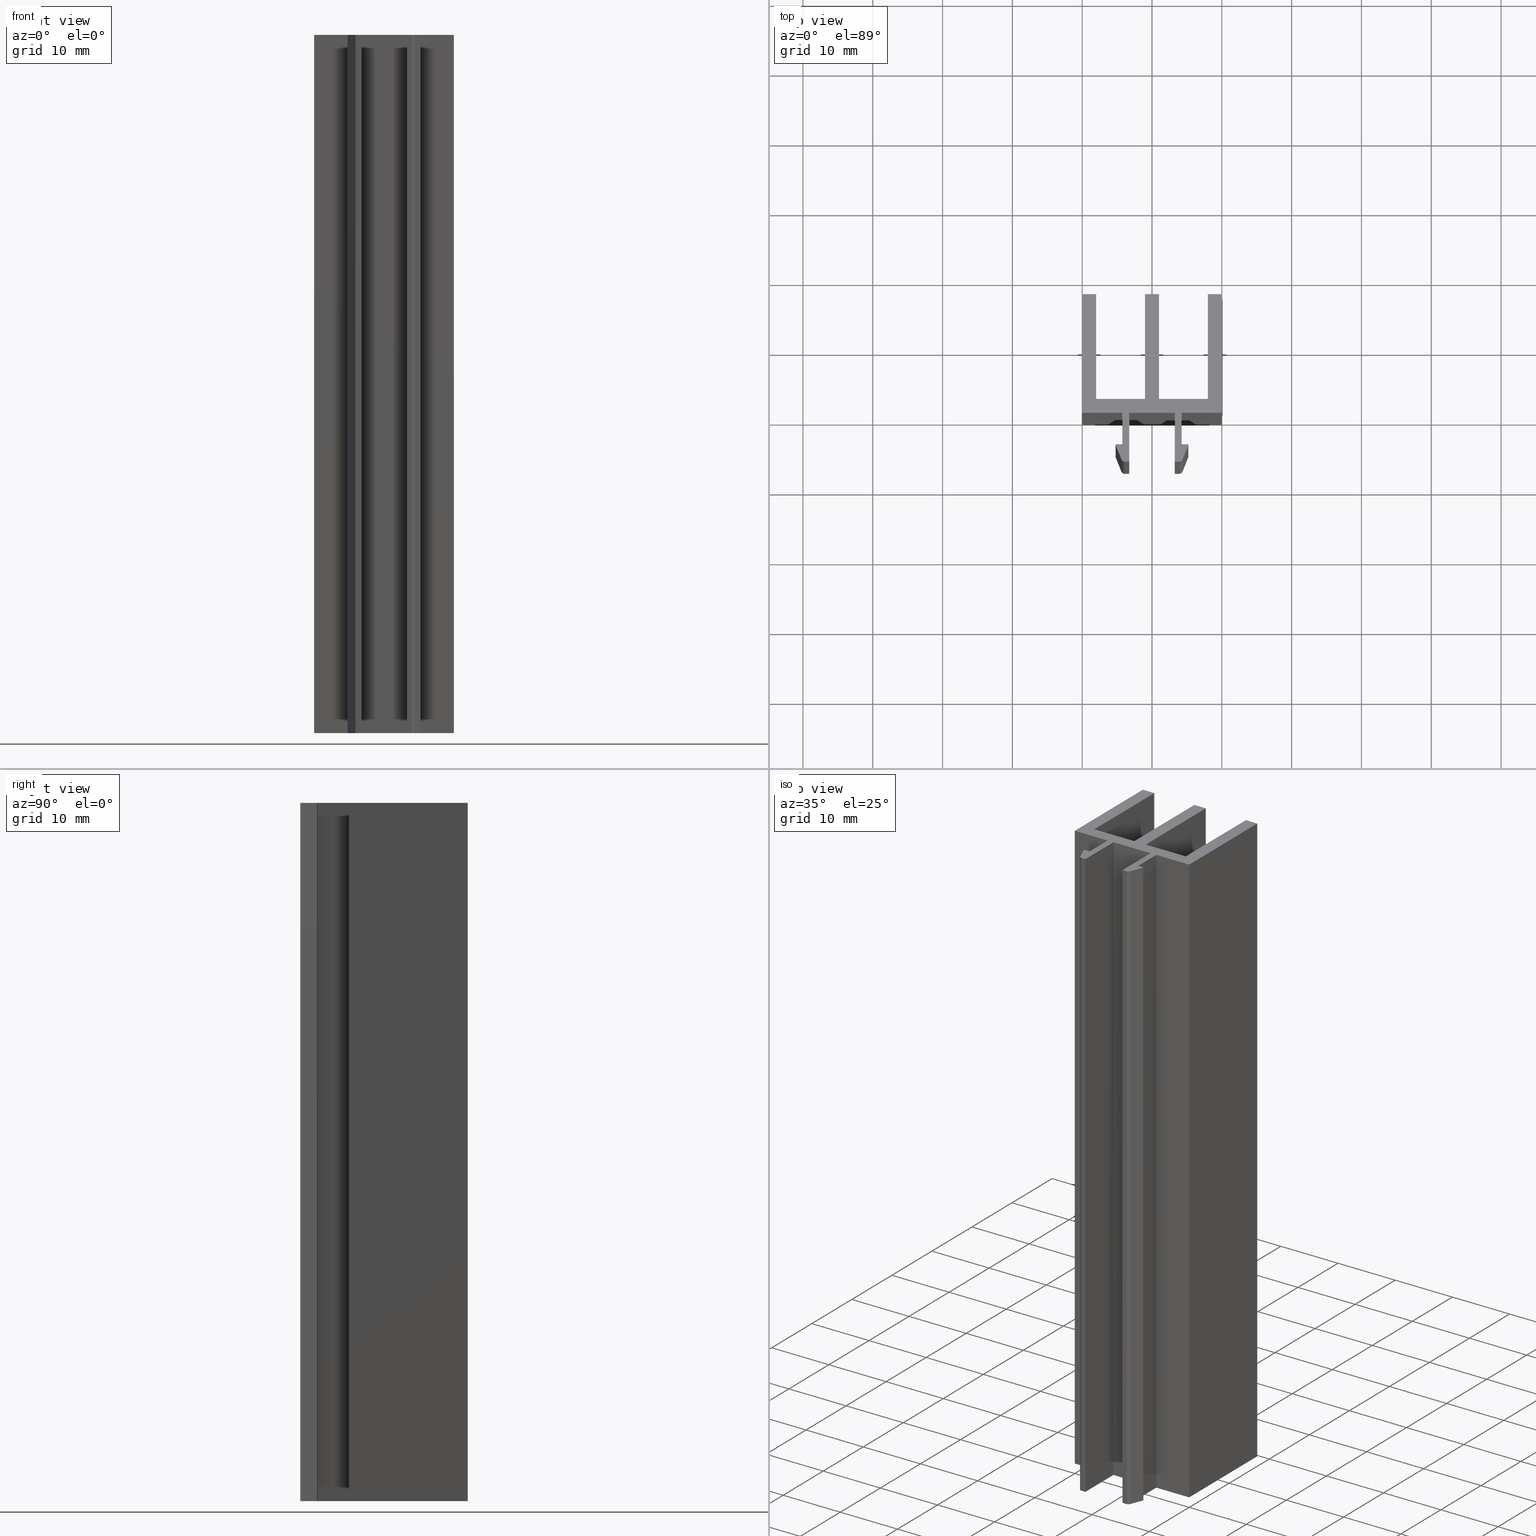
[diagram: canonical four-view strip — front | top / right | iso, engineering-drawing reading convention]
A machine part, canonical four-view strip (front | top / right | iso — engineering-drawing reading convention). The complete STEP part file that produces these views, byte-faithful:
ISO-10303-21;
HEADER;
/****************************************************************
 * Generated by software with PDE/Lib inside                    *
 * PDElib Version v4.4, created Mon 02/23/2004                  *
 * International Technegroup Inc. (www.iti-oh.com)              *
 ****************************************************************/
FILE_DESCRIPTION(('STEP AP203'),'2;1');
FILE_NAME('22.026.00.stp','2011-03-21T16:05:22',(''),(''),'2009.3.110','THINKDESIGN','');
FILE_SCHEMA(('CONFIG_CONTROL_DESIGN'));
ENDSEC;
DATA;
#2=CARTESIAN_POINT('',(-6.088516480689123,-6.499999999974079,0.0));
#3=DIRECTION('',(0.0,0.0,1.0));
#4=DIRECTION('',(1.0,0.0,0.0));
#5=AXIS2_PLACEMENT_3D('',#2,#3,#4);
#6=CYLINDRICAL_SURFACE('',#5,0.499999999998001);
#7=CARTESIAN_POINT('',(-6.088516480689123,-6.999999999972033,0.0));
#8=VERTEX_POINT('',#7);
#9=CARTESIAN_POINT('',(-5.624278135248460,-6.685695338150254,0.0));
#10=VERTEX_POINT('',#9);
#11=CARTESIAN_POINT('',(-6.088516480689123,-6.499999999974079,0.0));
#12=DIRECTION('',(0.0,0.0,1.0));
#13=DIRECTION('',(1.0,0.0,0.0));
#14=AXIS2_PLACEMENT_3D('',#11,#12,#13);
#15=CIRCLE('',#14,0.499999999998001);
#16=EDGE_CURVE('',#8,#10,#15,.T.);
#17=ORIENTED_EDGE('',*,*,#16,.T.);
#18=CARTESIAN_POINT('',(-5.624278135248460,-6.685695338150254,100.0));
#19=VERTEX_POINT('',#18);
#20=CARTESIAN_POINT('',(-5.624278135248460,-6.685695338150254,0.0));
#21=DIRECTION('',(0.0,0.0,1.0));
#22=VECTOR('',#21,100.0);
#23=LINE('',#20,#22);
#24=EDGE_CURVE('',#10,#19,#23,.T.);
#25=ORIENTED_EDGE('',*,*,#24,.T.);
#26=CARTESIAN_POINT('',(-6.088516480689123,-6.999999999972033,100.0));
#27=VERTEX_POINT('',#26);
#28=CARTESIAN_POINT('',(-6.088516480689123,-6.499999999974079,100.0));
#29=DIRECTION('',(0.0,0.0,1.0));
#30=DIRECTION('',(1.0,0.0,0.0));
#31=AXIS2_PLACEMENT_3D('',#28,#29,#30);
#32=CIRCLE('',#31,0.499999999998001);
#33=EDGE_CURVE('',#27,#19,#32,.T.);
#34=ORIENTED_EDGE('',*,*,#33,.F.);
#35=CARTESIAN_POINT('',(-6.088516480689123,-6.999999999972033,0.0));
#36=DIRECTION('',(0.0,0.0,1.0));
#37=VECTOR('',#36,100.0);
#38=LINE('',#35,#37);
#39=EDGE_CURVE('',#8,#27,#38,.T.);
#40=ORIENTED_EDGE('',*,*,#39,.F.);
#41=EDGE_LOOP('',(#17,#25,#34,#40));
#42=FACE_OUTER_BOUND('',#41,.T.);
#43=ADVANCED_FACE('',(#42),#6,.T.);
#44=CARTESIAN_POINT('',(-5.624278135248460,-6.685695338150254,0.0));
#45=DIRECTION('',(0.928476690885259,-0.371390676354104,0.0));
#46=DIRECTION('',(0.371390676354104,0.928476690885259,0.0));
#47=AXIS2_PLACEMENT_3D('',#44,#45,#46);
#48=PLANE('',#47);
#49=CARTESIAN_POINT('',(-4.804855627035067,-4.637139067616772,0.0));
#50=VERTEX_POINT('',#49);
#51=CARTESIAN_POINT('',(-5.624278135248447,-6.685695338150223,0.0));
#52=DIRECTION('',(0.371390676354104,0.928476690885259,0.0));
#53=VECTOR('',#52,2.206362626702290);
#54=LINE('',#51,#53);
#55=EDGE_CURVE('',#10,#50,#54,.T.);
#56=ORIENTED_EDGE('',*,*,#55,.T.);
#57=CARTESIAN_POINT('',(-4.804855627035067,-4.637139067616772,100.0));
#58=VERTEX_POINT('',#57);
#59=CARTESIAN_POINT('',(-4.804855627035067,-4.637139067616772,0.0));
#60=DIRECTION('',(0.0,0.0,1.0));
#61=VECTOR('',#60,100.0);
#62=LINE('',#59,#61);
#63=EDGE_CURVE('',#50,#58,#62,.T.);
#64=ORIENTED_EDGE('',*,*,#63,.T.);
#65=CARTESIAN_POINT('',(-5.624278135248447,-6.685695338150223,100.0));
#66=DIRECTION('',(0.371390676354104,0.928476690885259,0.0));
#67=VECTOR('',#66,2.206362626702290);
#68=LINE('',#65,#67);
#69=EDGE_CURVE('',#19,#58,#68,.T.);
#70=ORIENTED_EDGE('',*,*,#69,.F.);
#71=ORIENTED_EDGE('',*,*,#24,.F.);
#72=EDGE_LOOP('',(#56,#64,#70,#71));
#73=FACE_OUTER_BOUND('',#72,.T.);
#74=ADVANCED_FACE('',(#73),#48,.T.);
#75=CARTESIAN_POINT('',(-4.897703296123154,-4.599999999981492,0.0));
#76=DIRECTION('',(0.0,0.0,1.0));
#77=DIRECTION('',(0.928476690885318,-0.371390676353957,0.0));
#78=AXIS2_PLACEMENT_3D('',#75,#76,#77);
#79=CYLINDRICAL_SURFACE('',#78,0.099999999999600);
#80=CARTESIAN_POINT('',(-4.897703296123154,-4.499999999982038,0.0));
#81=VERTEX_POINT('',#80);
#82=CARTESIAN_POINT('',(-4.897703296123154,-4.599999999981492,0.0));
#83=DIRECTION('',(0.0,0.0,1.0));
#84=DIRECTION('',(1.0,0.0,0.0));
#85=AXIS2_PLACEMENT_3D('',#82,#83,#84);
#86=CIRCLE('',#85,0.099999999999600);
#87=EDGE_CURVE('',#50,#81,#86,.T.);
#88=ORIENTED_EDGE('',*,*,#87,.T.);
#89=CARTESIAN_POINT('',(-4.897703296123154,-4.499999999982038,100.0));
#90=VERTEX_POINT('',#89);
#91=CARTESIAN_POINT('',(-4.897703296123154,-4.499999999982038,0.0));
#92=DIRECTION('',(0.0,0.0,1.0));
#93=VECTOR('',#92,100.0);
#94=LINE('',#91,#93);
#95=EDGE_CURVE('',#81,#90,#94,.T.);
#96=ORIENTED_EDGE('',*,*,#95,.T.);
#97=CARTESIAN_POINT('',(-4.897703296123154,-4.599999999981492,100.0));
#98=DIRECTION('',(0.0,0.0,1.0));
#99=DIRECTION('',(1.0,0.0,0.0));
#100=AXIS2_PLACEMENT_3D('',#97,#98,#99);
#101=CIRCLE('',#100,0.099999999999600);
#102=EDGE_CURVE('',#58,#90,#101,.T.);
#103=ORIENTED_EDGE('',*,*,#102,.F.);
#104=ORIENTED_EDGE('',*,*,#63,.F.);
#105=EDGE_LOOP('',(#88,#96,#103,#104));
#106=FACE_OUTER_BOUND('',#105,.T.);
#107=ADVANCED_FACE('',(#106),#79,.T.);
#108=CARTESIAN_POINT('',(-4.897703296123154,-4.499999999982038,0.0));
#109=DIRECTION('',(0.0,1.0,0.0));
#110=DIRECTION('',(-1.0,0.0,0.0));
#111=AXIS2_PLACEMENT_3D('',#108,#109,#110);
#112=PLANE('',#111);
#113=CARTESIAN_POINT('',(-5.749999999977035,-4.499999999982038,0.0));
#114=VERTEX_POINT('',#113);
#115=CARTESIAN_POINT('',(-4.897703296123144,-4.499999999982038,0.0));
#116=DIRECTION('',(-1.0,0.0,0.0));
#117=VECTOR('',#116,0.852296703853892);
#118=LINE('',#115,#117);
#119=EDGE_CURVE('',#81,#114,#118,.T.);
#120=ORIENTED_EDGE('',*,*,#119,.T.);
#121=CARTESIAN_POINT('',(-5.749999999977035,-4.499999999982038,100.0));
#122=VERTEX_POINT('',#121);
#123=CARTESIAN_POINT('',(-5.749999999977035,-4.499999999982038,0.0));
#124=DIRECTION('',(0.0,0.0,1.0));
#125=VECTOR('',#124,100.0);
#126=LINE('',#123,#125);
#127=EDGE_CURVE('',#114,#122,#126,.T.);
#128=ORIENTED_EDGE('',*,*,#127,.T.);
#129=CARTESIAN_POINT('',(-4.897703296123144,-4.499999999982038,100.0));
#130=DIRECTION('',(-1.0,0.0,0.0));
#131=VECTOR('',#130,0.852296703853892);
#132=LINE('',#129,#131);
#133=EDGE_CURVE('',#90,#122,#132,.T.);
#134=ORIENTED_EDGE('',*,*,#133,.F.);
#135=ORIENTED_EDGE('',*,*,#95,.F.);
#136=EDGE_LOOP('',(#120,#128,#134,#135));
#137=FACE_OUTER_BOUND('',#136,.T.);
#138=ADVANCED_FACE('',(#137),#112,.T.);
#139=CARTESIAN_POINT('',(-5.749999999977035,-4.499999999982038,0.0));
#140=DIRECTION('',(1.0,0.0,0.0));
#141=DIRECTION('',(0.0,1.0,0.0));
#142=AXIS2_PLACEMENT_3D('',#139,#140,#141);
#143=PLANE('',#142);
#144=CARTESIAN_POINT('',(-5.749999999977035,0.0,0.0));
#145=VERTEX_POINT('',#144);
#146=CARTESIAN_POINT('',(-5.749999999977035,-4.499999999982008,0.0));
#147=DIRECTION('',(0.0,1.0,0.0));
#148=VECTOR('',#147,4.499999999982008);
#149=LINE('',#146,#148);
#150=EDGE_CURVE('',#114,#145,#149,.T.);
#151=ORIENTED_EDGE('',*,*,#150,.T.);
#152=CARTESIAN_POINT('',(-5.749999999977035,0.0,100.0));
#153=VERTEX_POINT('',#152);
#154=CARTESIAN_POINT('',(-5.749999999977035,0.0,0.0));
#155=DIRECTION('',(0.0,0.0,1.0));
#156=VECTOR('',#155,100.0);
#157=LINE('',#154,#156);
#158=EDGE_CURVE('',#145,#153,#157,.T.);
#159=ORIENTED_EDGE('',*,*,#158,.T.);
#160=CARTESIAN_POINT('',(-5.749999999977035,-4.499999999982008,100.0));
#161=DIRECTION('',(0.0,1.0,0.0));
#162=VECTOR('',#161,4.499999999982008);
#163=LINE('',#160,#162);
#164=EDGE_CURVE('',#122,#153,#163,.T.);
#165=ORIENTED_EDGE('',*,*,#164,.F.);
#166=ORIENTED_EDGE('',*,*,#127,.F.);
#167=EDGE_LOOP('',(#151,#159,#165,#166));
#168=FACE_OUTER_BOUND('',#167,.T.);
#169=ADVANCED_FACE('',(#168),#143,.T.);
#170=CARTESIAN_POINT('',(-5.749999999977035,0.0,0.0));
#171=DIRECTION('',(0.0,-1.0,0.0));
#172=DIRECTION('',(1.0,0.0,0.0));
#173=AXIS2_PLACEMENT_3D('',#170,#171,#172);
#174=PLANE('',#173);
#175=CARTESIAN_POINT('',(0.0,0.0,0.0));
#176=VERTEX_POINT('',#175);
#177=CARTESIAN_POINT('',(-5.749999999977026,0.0,0.0));
#178=DIRECTION('',(1.0,0.0,0.0));
#179=VECTOR('',#178,5.749999999977026);
#180=LINE('',#177,#179);
#181=EDGE_CURVE('',#145,#176,#180,.T.);
#182=ORIENTED_EDGE('',*,*,#181,.T.);
#183=CARTESIAN_POINT('',(0.0,0.0,100.0));
#184=VERTEX_POINT('',#183);
#185=CARTESIAN_POINT('',(0.0,0.0,0.0));
#186=DIRECTION('',(0.0,0.0,1.0));
#187=VECTOR('',#186,100.0);
#188=LINE('',#185,#187);
#189=EDGE_CURVE('',#176,#184,#188,.T.);
#190=ORIENTED_EDGE('',*,*,#189,.T.);
#191=CARTESIAN_POINT('',(-5.749999999977026,0.0,100.0));
#192=DIRECTION('',(1.0,0.0,0.0));
#193=VECTOR('',#192,5.749999999977026);
#194=LINE('',#191,#193);
#195=EDGE_CURVE('',#153,#184,#194,.T.);
#196=ORIENTED_EDGE('',*,*,#195,.F.);
#197=ORIENTED_EDGE('',*,*,#158,.F.);
#198=EDGE_LOOP('',(#182,#190,#196,#197));
#199=FACE_OUTER_BOUND('',#198,.T.);
#200=ADVANCED_FACE('',(#199),#174,.T.);
#201=CARTESIAN_POINT('',(0.0,0.0,0.0));
#202=DIRECTION('',(1.0,0.0,0.0));
#203=DIRECTION('',(0.0,1.0,0.0));
#204=AXIS2_PLACEMENT_3D('',#201,#202,#203);
#205=PLANE('',#204);
#206=CARTESIAN_POINT('',(0.0,16.999999999932015,0.0));
#207=VERTEX_POINT('',#206);
#208=CARTESIAN_POINT('',(0.0,3.552714E-015,0.0));
#209=DIRECTION('',(0.0,1.0,0.0));
#210=VECTOR('',#209,16.999999999932012);
#211=LINE('',#208,#210);
#212=EDGE_CURVE('',#176,#207,#211,.T.);
#213=ORIENTED_EDGE('',*,*,#212,.T.);
#214=CARTESIAN_POINT('',(0.0,16.999999999932015,100.0));
#215=VERTEX_POINT('',#214);
#216=CARTESIAN_POINT('',(0.0,16.999999999932015,0.0));
#217=DIRECTION('',(0.0,0.0,1.0));
#218=VECTOR('',#217,100.0);
#219=LINE('',#216,#218);
#220=EDGE_CURVE('',#207,#215,#219,.T.);
#221=ORIENTED_EDGE('',*,*,#220,.T.);
#222=CARTESIAN_POINT('',(0.0,3.552714E-015,100.0));
#223=DIRECTION('',(0.0,1.0,0.0));
#224=VECTOR('',#223,16.999999999932012);
#225=LINE('',#222,#224);
#226=EDGE_CURVE('',#184,#215,#225,.T.);
#227=ORIENTED_EDGE('',*,*,#226,.F.);
#228=ORIENTED_EDGE('',*,*,#189,.F.);
#229=EDGE_LOOP('',(#213,#221,#227,#228));
#230=FACE_OUTER_BOUND('',#229,.T.);
#231=ADVANCED_FACE('',(#230),#205,.T.);
#232=CARTESIAN_POINT('',(0.0,16.999999999932015,0.0));
#233=DIRECTION('',(0.0,1.0,0.0));
#234=DIRECTION('',(-1.0,0.0,0.0));
#235=AXIS2_PLACEMENT_3D('',#232,#233,#234);
#236=PLANE('',#235);
#237=CARTESIAN_POINT('',(-1.999999999992042,16.999999999932015,0.0));
#238=VERTEX_POINT('',#237);
#239=CARTESIAN_POINT('',(-3.441691E-014,16.999999999932015,0.0));
#240=DIRECTION('',(-1.0,0.0,0.0));
#241=VECTOR('',#240,1.999999999992008);
#242=LINE('',#239,#241);
#243=EDGE_CURVE('',#207,#238,#242,.T.);
#244=ORIENTED_EDGE('',*,*,#243,.T.);
#245=CARTESIAN_POINT('',(-1.999999999992042,16.999999999932015,100.0));
#246=VERTEX_POINT('',#245);
#247=CARTESIAN_POINT('',(-1.999999999992042,16.999999999932015,0.0));
#248=DIRECTION('',(0.0,0.0,1.0));
#249=VECTOR('',#248,100.0);
#250=LINE('',#247,#249);
#251=EDGE_CURVE('',#238,#246,#250,.T.);
#252=ORIENTED_EDGE('',*,*,#251,.T.);
#253=CARTESIAN_POINT('',(-3.441691E-014,16.999999999932015,100.0));
#254=DIRECTION('',(-1.0,0.0,0.0));
#255=VECTOR('',#254,1.999999999992008);
#256=LINE('',#253,#255);
#257=EDGE_CURVE('',#215,#246,#256,.T.);
#258=ORIENTED_EDGE('',*,*,#257,.F.);
#259=ORIENTED_EDGE('',*,*,#220,.F.);
#260=EDGE_LOOP('',(#244,#252,#258,#259));
#261=FACE_OUTER_BOUND('',#260,.T.);
#262=ADVANCED_FACE('',(#261),#236,.T.);
#263=CARTESIAN_POINT('',(-1.999999999992042,16.999999999932015,0.0));
#264=DIRECTION('',(-1.0,0.0,0.0));
#265=DIRECTION('',(0.0,-1.0,0.0));
#266=AXIS2_PLACEMENT_3D('',#263,#264,#265);
#267=PLANE('',#266);
#268=CARTESIAN_POINT('',(-1.999999999992042,1.999999999992042,0.0));
#269=VERTEX_POINT('',#268);
#270=CARTESIAN_POINT('',(-1.999999999992042,16.999999999932044,0.0));
#271=DIRECTION('',(0.0,-1.0,0.0));
#272=VECTOR('',#271,14.999999999940002);
#273=LINE('',#270,#272);
#274=EDGE_CURVE('',#238,#269,#273,.T.);
#275=ORIENTED_EDGE('',*,*,#274,.T.);
#276=CARTESIAN_POINT('',(-1.999999999992042,1.999999999992042,100.0));
#277=VERTEX_POINT('',#276);
#278=CARTESIAN_POINT('',(-1.999999999992042,1.999999999992042,0.0));
#279=DIRECTION('',(0.0,0.0,1.0));
#280=VECTOR('',#279,100.0);
#281=LINE('',#278,#280);
#282=EDGE_CURVE('',#269,#277,#281,.T.);
#283=ORIENTED_EDGE('',*,*,#282,.T.);
#284=CARTESIAN_POINT('',(-1.999999999992042,16.999999999932044,100.0));
#285=DIRECTION('',(0.0,-1.0,0.0));
#286=VECTOR('',#285,14.999999999940002);
#287=LINE('',#284,#286);
#288=EDGE_CURVE('',#246,#277,#287,.T.);
#289=ORIENTED_EDGE('',*,*,#288,.F.);
#290=ORIENTED_EDGE('',*,*,#251,.F.);
#291=EDGE_LOOP('',(#275,#283,#289,#290));
#292=FACE_OUTER_BOUND('',#291,.T.);
#293=ADVANCED_FACE('',(#292),#267,.T.);
#294=CARTESIAN_POINT('',(-1.999999999992042,1.999999999992042,0.0));
#295=DIRECTION('',(0.0,1.0,0.0));
#296=DIRECTION('',(-1.0,0.0,0.0));
#297=AXIS2_PLACEMENT_3D('',#294,#295,#296);
#298=PLANE('',#297);
#299=CARTESIAN_POINT('',(-8.999999999964075,1.999999999992042,0.0));
#300=VERTEX_POINT('',#299);
#301=CARTESIAN_POINT('',(-1.999999999992085,1.999999999992042,0.0));
#302=DIRECTION('',(-1.0,0.0,0.0));
#303=VECTOR('',#302,6.999999999971990);
#304=LINE('',#301,#303);
#305=EDGE_CURVE('',#269,#300,#304,.T.);
#306=ORIENTED_EDGE('',*,*,#305,.T.);
#307=CARTESIAN_POINT('',(-8.999999999964075,1.999999999992042,100.0));
#308=VERTEX_POINT('',#307);
#309=CARTESIAN_POINT('',(-8.999999999964075,1.999999999992042,0.0));
#310=DIRECTION('',(0.0,0.0,1.0));
#311=VECTOR('',#310,100.0);
#312=LINE('',#309,#311);
#313=EDGE_CURVE('',#300,#308,#312,.T.);
#314=ORIENTED_EDGE('',*,*,#313,.T.);
#315=CARTESIAN_POINT('',(-1.999999999992085,1.999999999992042,100.0));
#316=DIRECTION('',(-1.0,0.0,0.0));
#317=VECTOR('',#316,6.999999999971990);
#318=LINE('',#315,#317);
#319=EDGE_CURVE('',#277,#308,#318,.T.);
#320=ORIENTED_EDGE('',*,*,#319,.F.);
#321=ORIENTED_EDGE('',*,*,#282,.F.);
#322=EDGE_LOOP('',(#306,#314,#320,#321));
#323=FACE_OUTER_BOUND('',#322,.T.);
#324=ADVANCED_FACE('',(#323),#298,.T.);
#325=CARTESIAN_POINT('',(-8.999999999964075,1.999999999992042,0.0));
#326=DIRECTION('',(1.0,0.0,0.0));
#327=DIRECTION('',(0.0,1.0,0.0));
#328=AXIS2_PLACEMENT_3D('',#325,#326,#327);
#329=PLANE('',#328);
#330=CARTESIAN_POINT('',(-8.999999999964075,16.999999999932015,0.0));
#331=VERTEX_POINT('',#330);
#332=CARTESIAN_POINT('',(-8.999999999964075,1.999999999992012,0.0));
#333=DIRECTION('',(0.0,1.0,0.0));
#334=VECTOR('',#333,14.999999999940004);
#335=LINE('',#332,#334);
#336=EDGE_CURVE('',#300,#331,#335,.T.);
#337=ORIENTED_EDGE('',*,*,#336,.T.);
#338=CARTESIAN_POINT('',(-8.999999999964075,16.999999999932015,100.0));
#339=VERTEX_POINT('',#338);
#340=CARTESIAN_POINT('',(-8.999999999964075,16.999999999932015,0.0));
#341=DIRECTION('',(0.0,0.0,1.0));
#342=VECTOR('',#341,100.0);
#343=LINE('',#340,#342);
#344=EDGE_CURVE('',#331,#339,#343,.T.);
#345=ORIENTED_EDGE('',*,*,#344,.T.);
#346=CARTESIAN_POINT('',(-8.999999999964075,1.999999999992012,100.0));
#347=DIRECTION('',(0.0,1.0,0.0));
#348=VECTOR('',#347,14.999999999940004);
#349=LINE('',#346,#348);
#350=EDGE_CURVE('',#308,#339,#349,.T.);
#351=ORIENTED_EDGE('',*,*,#350,.F.);
#352=ORIENTED_EDGE('',*,*,#313,.F.);
#353=EDGE_LOOP('',(#337,#345,#351,#352));
#354=FACE_OUTER_BOUND('',#353,.T.);
#355=ADVANCED_FACE('',(#354),#329,.T.);
#356=CARTESIAN_POINT('',(-8.999999999964075,16.999999999932015,0.0));
#357=DIRECTION('',(0.0,1.0,0.0));
#358=DIRECTION('',(-1.0,0.0,0.0));
#359=AXIS2_PLACEMENT_3D('',#356,#357,#358);
#360=PLANE('',#359);
#361=CARTESIAN_POINT('',(-10.999999999956117,16.999999999932015,0.0));
#362=VERTEX_POINT('',#361);
#363=CARTESIAN_POINT('',(-8.999999999964109,16.999999999932015,0.0));
#364=DIRECTION('',(-1.0,0.0,0.0));
#365=VECTOR('',#364,1.999999999992008);
#366=LINE('',#363,#365);
#367=EDGE_CURVE('',#331,#362,#366,.T.);
#368=ORIENTED_EDGE('',*,*,#367,.T.);
#369=CARTESIAN_POINT('',(-10.999999999956117,16.999999999932015,100.0));
#370=VERTEX_POINT('',#369);
#371=CARTESIAN_POINT('',(-10.999999999956117,16.999999999932015,0.0));
#372=DIRECTION('',(0.0,0.0,1.0));
#373=VECTOR('',#372,100.0);
#374=LINE('',#371,#373);
#375=EDGE_CURVE('',#362,#370,#374,.T.);
#376=ORIENTED_EDGE('',*,*,#375,.T.);
#377=CARTESIAN_POINT('',(-8.999999999964109,16.999999999932015,100.0));
#378=DIRECTION('',(-1.0,0.0,0.0));
#379=VECTOR('',#378,1.999999999992008);
#380=LINE('',#377,#379);
#381=EDGE_CURVE('',#339,#370,#380,.T.);
#382=ORIENTED_EDGE('',*,*,#381,.F.);
#383=ORIENTED_EDGE('',*,*,#344,.F.);
#384=EDGE_LOOP('',(#368,#376,#382,#383));
#385=FACE_OUTER_BOUND('',#384,.T.);
#386=ADVANCED_FACE('',(#385),#360,.T.);
#387=CARTESIAN_POINT('',(-10.999999999956117,16.999999999932015,0.0));
#388=DIRECTION('',(-1.0,0.0,0.0));
#389=DIRECTION('',(0.0,-1.0,0.0));
#390=AXIS2_PLACEMENT_3D('',#387,#388,#389);
#391=PLANE('',#390);
#392=CARTESIAN_POINT('',(-10.999999999956117,1.999999999992042,0.0));
#393=VERTEX_POINT('',#392);
#394=CARTESIAN_POINT('',(-10.999999999956117,16.999999999932044,0.0));
#395=DIRECTION('',(0.0,-1.0,0.0));
#396=VECTOR('',#395,14.999999999940002);
#397=LINE('',#394,#396);
#398=EDGE_CURVE('',#362,#393,#397,.T.);
#399=ORIENTED_EDGE('',*,*,#398,.T.);
#400=CARTESIAN_POINT('',(-10.999999999956117,1.999999999992042,100.0));
#401=VERTEX_POINT('',#400);
#402=CARTESIAN_POINT('',(-10.999999999956117,1.999999999992042,0.0));
#403=DIRECTION('',(0.0,0.0,1.0));
#404=VECTOR('',#403,100.0);
#405=LINE('',#402,#404);
#406=EDGE_CURVE('',#393,#401,#405,.T.);
#407=ORIENTED_EDGE('',*,*,#406,.T.);
#408=CARTESIAN_POINT('',(-10.999999999956117,16.999999999932044,100.0));
#409=DIRECTION('',(0.0,-1.0,0.0));
#410=VECTOR('',#409,14.999999999940002);
#411=LINE('',#408,#410);
#412=EDGE_CURVE('',#370,#401,#411,.T.);
#413=ORIENTED_EDGE('',*,*,#412,.F.);
#414=ORIENTED_EDGE('',*,*,#375,.F.);
#415=EDGE_LOOP('',(#399,#407,#413,#414));
#416=FACE_OUTER_BOUND('',#415,.T.);
#417=ADVANCED_FACE('',(#416),#391,.T.);
#418=CARTESIAN_POINT('',(-10.999999999956117,1.999999999992042,0.0));
#419=DIRECTION('',(0.0,1.0,0.0));
#420=DIRECTION('',(-1.0,0.0,0.0));
#421=AXIS2_PLACEMENT_3D('',#418,#419,#420);
#422=PLANE('',#421);
#423=CARTESIAN_POINT('',(-17.999999999928150,1.999999999992042,0.0));
#424=VERTEX_POINT('',#423);
#425=CARTESIAN_POINT('',(-10.999999999956160,1.999999999992042,0.0));
#426=DIRECTION('',(-1.0,0.0,0.0));
#427=VECTOR('',#426,6.999999999971990);
#428=LINE('',#425,#427);
#429=EDGE_CURVE('',#393,#424,#428,.T.);
#430=ORIENTED_EDGE('',*,*,#429,.T.);
#431=CARTESIAN_POINT('',(-17.999999999928150,1.999999999992042,100.0));
#432=VERTEX_POINT('',#431);
#433=CARTESIAN_POINT('',(-17.999999999928150,1.999999999992042,0.0));
#434=DIRECTION('',(0.0,0.0,1.0));
#435=VECTOR('',#434,100.0);
#436=LINE('',#433,#435);
#437=EDGE_CURVE('',#424,#432,#436,.T.);
#438=ORIENTED_EDGE('',*,*,#437,.T.);
#439=CARTESIAN_POINT('',(-10.999999999956160,1.999999999992042,100.0));
#440=DIRECTION('',(-1.0,0.0,0.0));
#441=VECTOR('',#440,6.999999999971990);
#442=LINE('',#439,#441);
#443=EDGE_CURVE('',#401,#432,#442,.T.);
#444=ORIENTED_EDGE('',*,*,#443,.F.);
#445=ORIENTED_EDGE('',*,*,#406,.F.);
#446=EDGE_LOOP('',(#430,#438,#444,#445));
#447=FACE_OUTER_BOUND('',#446,.T.);
#448=ADVANCED_FACE('',(#447),#422,.T.);
#449=CARTESIAN_POINT('',(-17.999999999928150,1.999999999992042,0.0));
#450=DIRECTION('',(1.0,0.0,0.0));
#451=DIRECTION('',(0.0,1.0,0.0));
#452=AXIS2_PLACEMENT_3D('',#449,#450,#451);
#453=PLANE('',#452);
#454=CARTESIAN_POINT('',(-17.999999999928150,16.999999999932015,0.0));
#455=VERTEX_POINT('',#454);
#456=CARTESIAN_POINT('',(-17.999999999928150,1.999999999992012,0.0));
#457=DIRECTION('',(0.0,1.0,0.0));
#458=VECTOR('',#457,14.999999999940004);
#459=LINE('',#456,#458);
#460=EDGE_CURVE('',#424,#455,#459,.T.);
#461=ORIENTED_EDGE('',*,*,#460,.T.);
#462=CARTESIAN_POINT('',(-17.999999999928150,16.999999999932015,100.0));
#463=VERTEX_POINT('',#462);
#464=CARTESIAN_POINT('',(-17.999999999928150,16.999999999932015,0.0));
#465=DIRECTION('',(0.0,0.0,1.0));
#466=VECTOR('',#465,100.0);
#467=LINE('',#464,#466);
#468=EDGE_CURVE('',#455,#463,#467,.T.);
#469=ORIENTED_EDGE('',*,*,#468,.T.);
#470=CARTESIAN_POINT('',(-17.999999999928150,1.999999999992012,100.0));
#471=DIRECTION('',(0.0,1.0,0.0));
#472=VECTOR('',#471,14.999999999940004);
#473=LINE('',#470,#472);
#474=EDGE_CURVE('',#432,#463,#473,.T.);
#475=ORIENTED_EDGE('',*,*,#474,.F.);
#476=ORIENTED_EDGE('',*,*,#437,.F.);
#477=EDGE_LOOP('',(#461,#469,#475,#476));
#478=FACE_OUTER_BOUND('',#477,.T.);
#479=ADVANCED_FACE('',(#478),#453,.T.);
#480=CARTESIAN_POINT('',(-17.999999999928150,16.999999999932015,0.0));
#481=DIRECTION('',(0.0,1.0,0.0));
#482=DIRECTION('',(-1.0,0.0,0.0));
#483=AXIS2_PLACEMENT_3D('',#480,#481,#482);
#484=PLANE('',#483);
#485=CARTESIAN_POINT('',(-19.999999999920192,16.999999999932015,0.0));
#486=VERTEX_POINT('',#485);
#487=CARTESIAN_POINT('',(-17.999999999928185,16.999999999932015,0.0));
#488=DIRECTION('',(-1.0,0.0,0.0));
#489=VECTOR('',#488,1.999999999992006);
#490=LINE('',#487,#489);
#491=EDGE_CURVE('',#455,#486,#490,.T.);
#492=ORIENTED_EDGE('',*,*,#491,.T.);
#493=CARTESIAN_POINT('',(-19.999999999920192,16.999999999932015,100.0));
#494=VERTEX_POINT('',#493);
#495=CARTESIAN_POINT('',(-19.999999999920192,16.999999999932015,0.0));
#496=DIRECTION('',(0.0,0.0,1.0));
#497=VECTOR('',#496,100.0);
#498=LINE('',#495,#497);
#499=EDGE_CURVE('',#486,#494,#498,.T.);
#500=ORIENTED_EDGE('',*,*,#499,.T.);
#501=CARTESIAN_POINT('',(-17.999999999928185,16.999999999932015,100.0));
#502=DIRECTION('',(-1.0,0.0,0.0));
#503=VECTOR('',#502,1.999999999992006);
#504=LINE('',#501,#503);
#505=EDGE_CURVE('',#463,#494,#504,.T.);
#506=ORIENTED_EDGE('',*,*,#505,.F.);
#507=ORIENTED_EDGE('',*,*,#468,.F.);
#508=EDGE_LOOP('',(#492,#500,#506,#507));
#509=FACE_OUTER_BOUND('',#508,.T.);
#510=ADVANCED_FACE('',(#509),#484,.T.);
#511=CARTESIAN_POINT('',(-19.999999999920192,16.999999999932015,0.0));
#512=DIRECTION('',(-1.0,0.0,0.0));
#513=DIRECTION('',(0.0,-1.0,0.0));
#514=AXIS2_PLACEMENT_3D('',#511,#512,#513);
#515=PLANE('',#514);
#516=CARTESIAN_POINT('',(-19.999999999920192,0.0,0.0));
#517=VERTEX_POINT('',#516);
#518=CARTESIAN_POINT('',(-19.999999999920192,16.999999999931994,0.0));
#519=DIRECTION('',(0.0,-1.0,0.0));
#520=VECTOR('',#519,16.999999999931994);
#521=LINE('',#518,#520);
#522=EDGE_CURVE('',#486,#517,#521,.T.);
#523=ORIENTED_EDGE('',*,*,#522,.T.);
#524=CARTESIAN_POINT('',(-19.999999999920192,0.0,100.0));
#525=VERTEX_POINT('',#524);
#526=CARTESIAN_POINT('',(-19.999999999920192,0.0,0.0));
#527=DIRECTION('',(0.0,0.0,1.0));
#528=VECTOR('',#527,100.0);
#529=LINE('',#526,#528);
#530=EDGE_CURVE('',#517,#525,#529,.T.);
#531=ORIENTED_EDGE('',*,*,#530,.T.);
#532=CARTESIAN_POINT('',(-19.999999999920192,16.999999999931994,100.0));
#533=DIRECTION('',(0.0,-1.0,0.0));
#534=VECTOR('',#533,16.999999999931994);
#535=LINE('',#532,#534);
#536=EDGE_CURVE('',#494,#525,#535,.T.);
#537=ORIENTED_EDGE('',*,*,#536,.F.);
#538=ORIENTED_EDGE('',*,*,#499,.F.);
#539=EDGE_LOOP('',(#523,#531,#537,#538));
#540=FACE_OUTER_BOUND('',#539,.T.);
#541=ADVANCED_FACE('',(#540),#515,.T.);
#542=CARTESIAN_POINT('',(-19.999999999920192,0.0,0.0));
#543=DIRECTION('',(0.0,-1.0,0.0));
#544=DIRECTION('',(1.0,0.0,0.0));
#545=AXIS2_PLACEMENT_3D('',#542,#543,#544);
#546=PLANE('',#545);
#547=CARTESIAN_POINT('',(-14.249999999943157,0.0,0.0));
#548=VERTEX_POINT('',#547);
#549=CARTESIAN_POINT('',(-19.999999999920163,0.0,0.0));
#550=DIRECTION('',(1.0,0.0,0.0));
#551=VECTOR('',#550,5.749999999977007);
#552=LINE('',#549,#551);
#553=EDGE_CURVE('',#517,#548,#552,.T.);
#554=ORIENTED_EDGE('',*,*,#553,.T.);
#555=CARTESIAN_POINT('',(-14.249999999943157,0.0,100.0));
#556=VERTEX_POINT('',#555);
#557=CARTESIAN_POINT('',(-14.249999999943157,0.0,0.0));
#558=DIRECTION('',(0.0,0.0,1.0));
#559=VECTOR('',#558,100.0);
#560=LINE('',#557,#559);
#561=EDGE_CURVE('',#548,#556,#560,.T.);
#562=ORIENTED_EDGE('',*,*,#561,.T.);
#563=CARTESIAN_POINT('',(-19.999999999920163,0.0,100.0));
#564=DIRECTION('',(1.0,0.0,0.0));
#565=VECTOR('',#564,5.749999999977007);
#566=LINE('',#563,#565);
#567=EDGE_CURVE('',#525,#556,#566,.T.);
#568=ORIENTED_EDGE('',*,*,#567,.F.);
#569=ORIENTED_EDGE('',*,*,#530,.F.);
#570=EDGE_LOOP('',(#554,#562,#568,#569));
#571=FACE_OUTER_BOUND('',#570,.T.);
#572=ADVANCED_FACE('',(#571),#546,.T.);
#573=CARTESIAN_POINT('',(-14.249999999943157,0.0,0.0));
#574=DIRECTION('',(-1.0,0.0,0.0));
#575=DIRECTION('',(0.0,-1.0,0.0));
#576=AXIS2_PLACEMENT_3D('',#573,#574,#575);
#577=PLANE('',#576);
#578=CARTESIAN_POINT('',(-14.249999999943157,-4.499999999982038,0.0));
#579=VERTEX_POINT('',#578);
#580=CARTESIAN_POINT('',(-14.249999999943157,-2.930989E-014,0.0));
#581=DIRECTION('',(0.0,-1.0,0.0));
#582=VECTOR('',#581,4.499999999982008);
#583=LINE('',#580,#582);
#584=EDGE_CURVE('',#548,#579,#583,.T.);
#585=ORIENTED_EDGE('',*,*,#584,.T.);
#586=CARTESIAN_POINT('',(-14.249999999943157,-4.499999999982038,100.0));
#587=VERTEX_POINT('',#586);
#588=CARTESIAN_POINT('',(-14.249999999943157,-4.499999999982038,0.0));
#589=DIRECTION('',(0.0,0.0,1.0));
#590=VECTOR('',#589,100.0);
#591=LINE('',#588,#590);
#592=EDGE_CURVE('',#579,#587,#591,.T.);
#593=ORIENTED_EDGE('',*,*,#592,.T.);
#594=CARTESIAN_POINT('',(-14.249999999943157,-2.930989E-014,100.0));
#595=DIRECTION('',(0.0,-1.0,0.0));
#596=VECTOR('',#595,4.499999999982008);
#597=LINE('',#594,#596);
#598=EDGE_CURVE('',#556,#587,#597,.T.);
#599=ORIENTED_EDGE('',*,*,#598,.F.);
#600=ORIENTED_EDGE('',*,*,#561,.F.);
#601=EDGE_LOOP('',(#585,#593,#599,#600));
#602=FACE_OUTER_BOUND('',#601,.T.);
#603=ADVANCED_FACE('',(#602),#577,.T.);
#604=CARTESIAN_POINT('',(-14.249999999943157,-4.499999999982038,0.0));
#605=DIRECTION('',(0.0,1.0,0.0));
#606=DIRECTION('',(-1.0,0.0,0.0));
#607=AXIS2_PLACEMENT_3D('',#604,#605,#606);
#608=PLANE('',#607);
#609=CARTESIAN_POINT('',(-15.102296703797037,-4.499999999981810,0.0));
#610=VERTEX_POINT('',#609);
#611=CARTESIAN_POINT('',(-14.249999999943128,-4.499999999982038,0.0));
#612=DIRECTION('',(-1.0,0.0,0.0));
#613=VECTOR('',#612,0.852296703853909);
#614=LINE('',#611,#613);
#615=EDGE_CURVE('',#579,#610,#614,.T.);
#616=ORIENTED_EDGE('',*,*,#615,.T.);
#617=CARTESIAN_POINT('',(-15.102296703797037,-4.499999999981810,100.0));
#618=VERTEX_POINT('',#617);
#619=CARTESIAN_POINT('',(-15.102296703797037,-4.499999999981810,0.0));
#620=DIRECTION('',(0.0,0.0,1.0));
#621=VECTOR('',#620,100.0);
#622=LINE('',#619,#621);
#623=EDGE_CURVE('',#610,#618,#622,.T.);
#624=ORIENTED_EDGE('',*,*,#623,.T.);
#625=CARTESIAN_POINT('',(-14.249999999943128,-4.499999999982038,100.0));
#626=DIRECTION('',(-1.0,0.0,0.0));
#627=VECTOR('',#626,0.852296703853909);
#628=LINE('',#625,#627);
#629=EDGE_CURVE('',#587,#618,#628,.T.);
#630=ORIENTED_EDGE('',*,*,#629,.F.);
#631=ORIENTED_EDGE('',*,*,#592,.F.);
#632=EDGE_LOOP('',(#616,#624,#630,#631));
#633=FACE_OUTER_BOUND('',#632,.T.);
#634=ADVANCED_FACE('',(#633),#608,.T.);
#635=CARTESIAN_POINT('',(-15.102296703797037,-4.599999999981492,0.0));
#636=DIRECTION('',(0.0,0.0,1.0));
#637=DIRECTION('',(1.0,0.0,0.0));
#638=AXIS2_PLACEMENT_3D('',#635,#636,#637);
#639=CYLINDRICAL_SURFACE('',#638,0.099999999999601);
#640=CARTESIAN_POINT('',(-15.195144372885125,-4.637139067616772,0.0));
#641=VERTEX_POINT('',#640);
#642=CARTESIAN_POINT('',(-15.102296703797037,-4.599999999981492,0.0));
#643=DIRECTION('',(0.0,0.0,1.0));
#644=DIRECTION('',(1.0,0.0,0.0));
#645=AXIS2_PLACEMENT_3D('',#642,#643,#644);
#646=CIRCLE('',#645,0.099999999999601);
#647=EDGE_CURVE('',#610,#641,#646,.T.);
#648=ORIENTED_EDGE('',*,*,#647,.T.);
#649=CARTESIAN_POINT('',(-15.195144372885125,-4.637139067616772,100.0));
#650=VERTEX_POINT('',#649);
#651=CARTESIAN_POINT('',(-15.195144372885125,-4.637139067616772,0.0));
#652=DIRECTION('',(0.0,0.0,1.0));
#653=VECTOR('',#652,100.0);
#654=LINE('',#651,#653);
#655=EDGE_CURVE('',#641,#650,#654,.T.);
#656=ORIENTED_EDGE('',*,*,#655,.T.);
#657=CARTESIAN_POINT('',(-15.102296703797037,-4.599999999981492,100.0));
#658=DIRECTION('',(0.0,0.0,1.0));
#659=DIRECTION('',(1.0,0.0,0.0));
#660=AXIS2_PLACEMENT_3D('',#657,#658,#659);
#661=CIRCLE('',#660,0.099999999999601);
#662=EDGE_CURVE('',#618,#650,#661,.T.);
#663=ORIENTED_EDGE('',*,*,#662,.F.);
#664=ORIENTED_EDGE('',*,*,#623,.F.);
#665=EDGE_LOOP('',(#648,#656,#663,#664));
#666=FACE_OUTER_BOUND('',#665,.T.);
#667=ADVANCED_FACE('',(#666),#639,.T.);
#668=CARTESIAN_POINT('',(-15.195144372885125,-4.637139067616772,0.0));
#669=DIRECTION('',(-0.928476690885259,-0.371390676354104,0.0));
#670=DIRECTION('',(0.371390676354104,-0.928476690885259,0.0));
#671=AXIS2_PLACEMENT_3D('',#668,#669,#670);
#672=PLANE('',#671);
#673=CARTESIAN_POINT('',(-14.375721864671959,-6.685695338150254,0.0));
#674=VERTEX_POINT('',#673);
#675=CARTESIAN_POINT('',(-15.195144372885112,-4.637139067616802,0.0));
#676=DIRECTION('',(0.371390676354104,-0.928476690885259,0.0));
#677=VECTOR('',#676,2.206362626702290);
#678=LINE('',#675,#677);
#679=EDGE_CURVE('',#641,#674,#678,.T.);
#680=ORIENTED_EDGE('',*,*,#679,.T.);
#681=CARTESIAN_POINT('',(-14.375721864671959,-6.685695338150254,100.0));
#682=VERTEX_POINT('',#681);
#683=CARTESIAN_POINT('',(-14.375721864671959,-6.685695338150254,0.0));
#684=DIRECTION('',(0.0,0.0,1.0));
#685=VECTOR('',#684,100.0);
#686=LINE('',#683,#685);
#687=EDGE_CURVE('',#674,#682,#686,.T.);
#688=ORIENTED_EDGE('',*,*,#687,.T.);
#689=CARTESIAN_POINT('',(-15.195144372885112,-4.637139067616802,100.0));
#690=DIRECTION('',(0.371390676354104,-0.928476690885259,0.0));
#691=VECTOR('',#690,2.206362626702290);
#692=LINE('',#689,#691);
#693=EDGE_CURVE('',#650,#682,#692,.T.);
#694=ORIENTED_EDGE('',*,*,#693,.F.);
#695=ORIENTED_EDGE('',*,*,#655,.F.);
#696=EDGE_LOOP('',(#680,#688,#694,#695));
#697=FACE_OUTER_BOUND('',#696,.T.);
#698=ADVANCED_FACE('',(#697),#672,.T.);
#699=CARTESIAN_POINT('',(-13.911483519231069,-6.499999999974079,0.0));
#700=DIRECTION('',(0.0,0.0,1.0));
#701=DIRECTION('',(1.0,0.0,0.0));
#702=AXIS2_PLACEMENT_3D('',#699,#700,#701);
#703=CYLINDRICAL_SURFACE('',#702,0.499999999998000);
#704=CARTESIAN_POINT('',(-13.911483519230842,-6.999999999972033,0.0));
#705=VERTEX_POINT('',#704);
#706=CARTESIAN_POINT('',(-13.911483519231069,-6.499999999974079,0.0));
#707=DIRECTION('',(0.0,0.0,1.0));
#708=DIRECTION('',(1.0,0.0,0.0));
#709=AXIS2_PLACEMENT_3D('',#706,#707,#708);
#710=CIRCLE('',#709,0.499999999998000);
#711=EDGE_CURVE('',#674,#705,#710,.T.);
#712=ORIENTED_EDGE('',*,*,#711,.T.);
#713=CARTESIAN_POINT('',(-13.911483519230842,-6.999999999972033,100.0));
#714=VERTEX_POINT('',#713);
#715=CARTESIAN_POINT('',(-13.911483519230842,-6.999999999972033,0.0));
#716=DIRECTION('',(0.0,0.0,1.0));
#717=VECTOR('',#716,100.0);
#718=LINE('',#715,#717);
#719=EDGE_CURVE('',#705,#714,#718,.T.);
#720=ORIENTED_EDGE('',*,*,#719,.T.);
#721=CARTESIAN_POINT('',(-13.911483519231069,-6.499999999974079,100.0));
#722=DIRECTION('',(0.0,0.0,1.0));
#723=DIRECTION('',(1.0,0.0,0.0));
#724=AXIS2_PLACEMENT_3D('',#721,#722,#723);
#725=CIRCLE('',#724,0.499999999998000);
#726=EDGE_CURVE('',#682,#714,#725,.T.);
#727=ORIENTED_EDGE('',*,*,#726,.F.);
#728=ORIENTED_EDGE('',*,*,#687,.F.);
#729=EDGE_LOOP('',(#712,#720,#727,#728));
#730=FACE_OUTER_BOUND('',#729,.T.);
#731=ADVANCED_FACE('',(#730),#703,.T.);
#732=CARTESIAN_POINT('',(-13.911483519230842,-6.999999999972033,0.0));
#733=DIRECTION('',(0.0,-1.0,0.0));
#734=DIRECTION('',(1.0,0.0,0.0));
#735=AXIS2_PLACEMENT_3D('',#732,#733,#734);
#736=PLANE('',#735);
#737=CARTESIAN_POINT('',(-13.249999999947022,-6.999999999972033,0.0));
#738=VERTEX_POINT('',#737);
#739=CARTESIAN_POINT('',(-13.911483519230913,-6.999999999972033,0.0));
#740=DIRECTION('',(1.0,0.0,0.0));
#741=VECTOR('',#740,0.661483519283891);
#742=LINE('',#739,#741);
#743=EDGE_CURVE('',#705,#738,#742,.T.);
#744=ORIENTED_EDGE('',*,*,#743,.T.);
#745=CARTESIAN_POINT('',(-13.249999999947022,-6.999999999972033,100.0));
#746=VERTEX_POINT('',#745);
#747=CARTESIAN_POINT('',(-13.249999999947022,-6.999999999972033,0.0));
#748=DIRECTION('',(0.0,0.0,1.0));
#749=VECTOR('',#748,100.0);
#750=LINE('',#747,#749);
#751=EDGE_CURVE('',#738,#746,#750,.T.);
#752=ORIENTED_EDGE('',*,*,#751,.T.);
#753=CARTESIAN_POINT('',(-13.911483519230913,-6.999999999972033,100.0));
#754=DIRECTION('',(1.0,0.0,0.0));
#755=VECTOR('',#754,0.661483519283891);
#756=LINE('',#753,#755);
#757=EDGE_CURVE('',#714,#746,#756,.T.);
#758=ORIENTED_EDGE('',*,*,#757,.F.);
#759=ORIENTED_EDGE('',*,*,#719,.F.);
#760=EDGE_LOOP('',(#744,#752,#758,#759));
#761=FACE_OUTER_BOUND('',#760,.T.);
#762=ADVANCED_FACE('',(#761),#736,.T.);
#763=CARTESIAN_POINT('',(-13.249999999947022,-6.999999999972033,0.0));
#764=DIRECTION('',(1.0,0.0,0.0));
#765=DIRECTION('',(0.0,1.0,0.0));
#766=AXIS2_PLACEMENT_3D('',#763,#764,#765);
#767=PLANE('',#766);
#768=CARTESIAN_POINT('',(-13.249999999947249,0.0,0.0));
#769=VERTEX_POINT('',#768);
#770=CARTESIAN_POINT('',(-13.249999999947022,-6.999999999972009,0.0));
#771=DIRECTION('',(0.0,1.0,0.0));
#772=VECTOR('',#771,6.999999999972009);
#773=LINE('',#770,#772);
#774=EDGE_CURVE('',#738,#769,#773,.T.);
#775=ORIENTED_EDGE('',*,*,#774,.T.);
#776=CARTESIAN_POINT('',(-13.249999999947249,0.0,100.0));
#777=VERTEX_POINT('',#776);
#778=CARTESIAN_POINT('',(-13.249999999947249,0.0,0.0));
#779=DIRECTION('',(0.0,0.0,1.0));
#780=VECTOR('',#779,100.0);
#781=LINE('',#778,#780);
#782=EDGE_CURVE('',#769,#777,#781,.T.);
#783=ORIENTED_EDGE('',*,*,#782,.T.);
#784=CARTESIAN_POINT('',(-13.249999999947022,-6.999999999972009,100.0));
#785=DIRECTION('',(0.0,1.0,0.0));
#786=VECTOR('',#785,6.999999999972009);
#787=LINE('',#784,#786);
#788=EDGE_CURVE('',#746,#777,#787,.T.);
#789=ORIENTED_EDGE('',*,*,#788,.F.);
#790=ORIENTED_EDGE('',*,*,#751,.F.);
#791=EDGE_LOOP('',(#775,#783,#789,#790));
#792=FACE_OUTER_BOUND('',#791,.T.);
#793=ADVANCED_FACE('',(#792),#767,.T.);
#794=CARTESIAN_POINT('',(-13.249999999947249,0.0,0.0));
#795=DIRECTION('',(0.0,-1.0,0.0));
#796=DIRECTION('',(1.0,0.0,0.0));
#797=AXIS2_PLACEMENT_3D('',#794,#795,#796);
#798=PLANE('',#797);
#799=CARTESIAN_POINT('',(-6.749999999973170,0.0,0.0));
#800=VERTEX_POINT('',#799);
#801=CARTESIAN_POINT('',(-13.249999999947168,0.0,0.0));
#802=DIRECTION('',(1.0,0.0,0.0));
#803=VECTOR('',#802,6.499999999973998);
#804=LINE('',#801,#803);
#805=EDGE_CURVE('',#769,#800,#804,.T.);
#806=ORIENTED_EDGE('',*,*,#805,.T.);
#807=CARTESIAN_POINT('',(-6.749999999973170,0.0,100.0));
#808=VERTEX_POINT('',#807);
#809=CARTESIAN_POINT('',(-6.749999999973170,0.0,0.0));
#810=DIRECTION('',(0.0,0.0,1.0));
#811=VECTOR('',#810,100.0);
#812=LINE('',#809,#811);
#813=EDGE_CURVE('',#800,#808,#812,.T.);
#814=ORIENTED_EDGE('',*,*,#813,.T.);
#815=CARTESIAN_POINT('',(-13.249999999947168,0.0,100.0));
#816=DIRECTION('',(1.0,0.0,0.0));
#817=VECTOR('',#816,6.499999999973998);
#818=LINE('',#815,#817);
#819=EDGE_CURVE('',#777,#808,#818,.T.);
#820=ORIENTED_EDGE('',*,*,#819,.F.);
#821=ORIENTED_EDGE('',*,*,#782,.F.);
#822=EDGE_LOOP('',(#806,#814,#820,#821));
#823=FACE_OUTER_BOUND('',#822,.T.);
#824=ADVANCED_FACE('',(#823),#798,.T.);
#825=CARTESIAN_POINT('',(-6.749999999973170,0.0,0.0));
#826=DIRECTION('',(-1.0,0.0,0.0));
#827=DIRECTION('',(0.0,-1.0,0.0));
#828=AXIS2_PLACEMENT_3D('',#825,#826,#827);
#829=PLANE('',#828);
#830=CARTESIAN_POINT('',(-6.749999999972943,-6.999999999972033,0.0));
#831=VERTEX_POINT('',#830);
#832=CARTESIAN_POINT('',(-6.749999999973170,-2.398082E-014,0.0));
#833=DIRECTION('',(0.0,-1.0,0.0));
#834=VECTOR('',#833,6.999999999972009);
#835=LINE('',#832,#834);
#836=EDGE_CURVE('',#800,#831,#835,.T.);
#837=ORIENTED_EDGE('',*,*,#836,.T.);
#838=CARTESIAN_POINT('',(-6.749999999972943,-6.999999999972033,100.0));
#839=VERTEX_POINT('',#838);
#840=CARTESIAN_POINT('',(-6.749999999972943,-6.999999999972033,0.0));
#841=DIRECTION('',(0.0,0.0,1.0));
#842=VECTOR('',#841,100.0);
#843=LINE('',#840,#842);
#844=EDGE_CURVE('',#831,#839,#843,.T.);
#845=ORIENTED_EDGE('',*,*,#844,.T.);
#846=CARTESIAN_POINT('',(-6.749999999973170,-2.398082E-014,100.0));
#847=DIRECTION('',(0.0,-1.0,0.0));
#848=VECTOR('',#847,6.999999999972009);
#849=LINE('',#846,#848);
#850=EDGE_CURVE('',#808,#839,#849,.T.);
#851=ORIENTED_EDGE('',*,*,#850,.F.);
#852=ORIENTED_EDGE('',*,*,#813,.F.);
#853=EDGE_LOOP('',(#837,#845,#851,#852));
#854=FACE_OUTER_BOUND('',#853,.T.);
#855=ADVANCED_FACE('',(#854),#829,.T.);
#856=CARTESIAN_POINT('',(-6.749999999972943,-6.999999999972033,0.0));
#857=DIRECTION('',(0.0,-1.0,0.0));
#858=DIRECTION('',(1.0,0.0,0.0));
#859=AXIS2_PLACEMENT_3D('',#856,#857,#858);
#860=PLANE('',#859);
#861=CARTESIAN_POINT('',(-6.749999999973031,-6.999999999972033,0.0));
#862=DIRECTION('',(1.0,0.0,0.0));
#863=VECTOR('',#862,0.661483519283908);
#864=LINE('',#861,#863);
#865=EDGE_CURVE('',#831,#8,#864,.T.);
#866=ORIENTED_EDGE('',*,*,#865,.T.);
#867=ORIENTED_EDGE('',*,*,#39,.T.);
#868=CARTESIAN_POINT('',(-6.749999999973031,-6.999999999972033,100.0));
#869=DIRECTION('',(1.0,0.0,0.0));
#870=VECTOR('',#869,0.661483519283908);
#871=LINE('',#868,#870);
#872=EDGE_CURVE('',#839,#27,#871,.T.);
#873=ORIENTED_EDGE('',*,*,#872,.F.);
#874=ORIENTED_EDGE('',*,*,#844,.F.);
#875=EDGE_LOOP('',(#866,#867,#873,#874));
#876=FACE_OUTER_BOUND('',#875,.T.);
#877=ADVANCED_FACE('',(#876),#860,.T.);
#878=CARTESIAN_POINT('',(-22.000004729109151,-9.400004729100829,0.0));
#879=DIRECTION('',(0.0,0.0,1.0));
#880=DIRECTION('',(1.0,0.0,0.0));
#881=AXIS2_PLACEMENT_3D('',#878,#879,#880);
#882=PLANE('',#881);
#883=ORIENTED_EDGE('',*,*,#865,.F.);
#884=ORIENTED_EDGE('',*,*,#836,.F.);
#885=ORIENTED_EDGE('',*,*,#805,.F.);
#886=ORIENTED_EDGE('',*,*,#774,.F.);
#887=ORIENTED_EDGE('',*,*,#743,.F.);
#888=ORIENTED_EDGE('',*,*,#711,.F.);
#889=ORIENTED_EDGE('',*,*,#679,.F.);
#890=ORIENTED_EDGE('',*,*,#647,.F.);
#891=ORIENTED_EDGE('',*,*,#615,.F.);
#892=ORIENTED_EDGE('',*,*,#584,.F.);
#893=ORIENTED_EDGE('',*,*,#553,.F.);
#894=ORIENTED_EDGE('',*,*,#522,.F.);
#895=ORIENTED_EDGE('',*,*,#491,.F.);
#896=ORIENTED_EDGE('',*,*,#460,.F.);
#897=ORIENTED_EDGE('',*,*,#429,.F.);
#898=ORIENTED_EDGE('',*,*,#398,.F.);
#899=ORIENTED_EDGE('',*,*,#367,.F.);
#900=ORIENTED_EDGE('',*,*,#336,.F.);
#901=ORIENTED_EDGE('',*,*,#305,.F.);
#902=ORIENTED_EDGE('',*,*,#274,.F.);
#903=ORIENTED_EDGE('',*,*,#243,.F.);
#904=ORIENTED_EDGE('',*,*,#212,.F.);
#905=ORIENTED_EDGE('',*,*,#181,.F.);
#906=ORIENTED_EDGE('',*,*,#150,.F.);
#907=ORIENTED_EDGE('',*,*,#119,.F.);
#908=ORIENTED_EDGE('',*,*,#87,.F.);
#909=ORIENTED_EDGE('',*,*,#55,.F.);
#910=ORIENTED_EDGE('',*,*,#16,.F.);
#911=EDGE_LOOP('',(#883,#884,#885,#886,#887,#888,#889,#890,#891,#892,#893,#894,#895,#896,#897,#898,#899,#900,#901,#902,#903,#904,#905,#906,#907,#908,#909,#910));
#912=FACE_OUTER_BOUND('',#911,.T.);
#913=ADVANCED_FACE('',(#912),#882,.F.);
#914=CARTESIAN_POINT('',(-22.000004729109151,-9.400004729100829,100.0));
#915=DIRECTION('',(0.0,0.0,1.0));
#916=DIRECTION('',(1.0,0.0,0.0));
#917=AXIS2_PLACEMENT_3D('',#914,#915,#916);
#918=PLANE('',#917);
#919=ORIENTED_EDGE('',*,*,#33,.T.);
#920=ORIENTED_EDGE('',*,*,#69,.T.);
#921=ORIENTED_EDGE('',*,*,#102,.T.);
#922=ORIENTED_EDGE('',*,*,#133,.T.);
#923=ORIENTED_EDGE('',*,*,#164,.T.);
#924=ORIENTED_EDGE('',*,*,#195,.T.);
#925=ORIENTED_EDGE('',*,*,#226,.T.);
#926=ORIENTED_EDGE('',*,*,#257,.T.);
#927=ORIENTED_EDGE('',*,*,#288,.T.);
#928=ORIENTED_EDGE('',*,*,#319,.T.);
#929=ORIENTED_EDGE('',*,*,#350,.T.);
#930=ORIENTED_EDGE('',*,*,#381,.T.);
#931=ORIENTED_EDGE('',*,*,#412,.T.);
#932=ORIENTED_EDGE('',*,*,#443,.T.);
#933=ORIENTED_EDGE('',*,*,#474,.T.);
#934=ORIENTED_EDGE('',*,*,#505,.T.);
#935=ORIENTED_EDGE('',*,*,#536,.T.);
#936=ORIENTED_EDGE('',*,*,#567,.T.);
#937=ORIENTED_EDGE('',*,*,#598,.T.);
#938=ORIENTED_EDGE('',*,*,#629,.T.);
#939=ORIENTED_EDGE('',*,*,#662,.T.);
#940=ORIENTED_EDGE('',*,*,#693,.T.);
#941=ORIENTED_EDGE('',*,*,#726,.T.);
#942=ORIENTED_EDGE('',*,*,#757,.T.);
#943=ORIENTED_EDGE('',*,*,#788,.T.);
#944=ORIENTED_EDGE('',*,*,#819,.T.);
#945=ORIENTED_EDGE('',*,*,#850,.T.);
#946=ORIENTED_EDGE('',*,*,#872,.T.);
#947=EDGE_LOOP('',(#919,#920,#921,#922,#923,#924,#925,#926,#927,#928,#929,#930,#931,#932,#933,#934,#935,#936,#937,#938,#939,#940,#941,#942,#943,#944,#945,#946));
#948=FACE_OUTER_BOUND('',#947,.T.);
#949=ADVANCED_FACE('',(#948),#918,.T.);
#950=CLOSED_SHELL('',(#43,#74,#107,#138,#169,#200,#231,#262,#293,#324,#355,#386,#417,#448,#479,#510,#541,#572,#603,#634,#667,#698,#731,#762,#793,#824,#855,#877,#913,#949));
#951=MANIFOLD_SOLID_BREP('',#950);
#957=(NAMED_UNIT(*)PLANE_ANGLE_UNIT()SI_UNIT($,.RADIAN.));
#958=DIMENSIONAL_EXPONENTS(0.0,0.0,0.0,0.0,0.0,0.0,0.0);
#959=PLANE_ANGLE_MEASURE_WITH_UNIT(PLANE_ANGLE_MEASURE(0.017453292500000),#957);
#963=(CONVERSION_BASED_UNIT('DEGREE',#959)NAMED_UNIT(#958)PLANE_ANGLE_UNIT());
#967=(NAMED_UNIT(*)SI_UNIT($,.STERADIAN.)SOLID_ANGLE_UNIT());
#971=(LENGTH_UNIT()NAMED_UNIT(*)SI_UNIT(.MILLI.,.METRE.));
#973=UNCERTAINTY_MEASURE_WITH_UNIT(LENGTH_MEASURE(0.001000000000000),#971,'DISTANCE_ACCURACY_VALUE','');
#975=(GEOMETRIC_REPRESENTATION_CONTEXT(3)GLOBAL_UNCERTAINTY_ASSIGNED_CONTEXT((#973))GLOBAL_UNIT_ASSIGNED_CONTEXT((#963,#967,#971))REPRESENTATION_CONTEXT('thinkdesign','2009.3.110'));
#976=ADVANCED_BREP_SHAPE_REPRESENTATION('',(#951),#975);
#977=APPLICATION_CONTEXT('configuration controlled 3D designs of mechanical parts and assemblies');
#978=APPLICATION_PROTOCOL_DEFINITION('International Standard','config_control_design',1995,#977);
#979=MECHANICAL_CONTEXT('None',#977,'mechanical');
#980=PRODUCT('None','None','None',(#979));
#981=PRODUCT_RELATED_PRODUCT_CATEGORY('detail',$,(#980));
#982=PRODUCT_CATEGORY('part',$);
#983=PRODUCT_CATEGORY_RELATIONSHIP('None','None',#982,#981);
#984=PERSON('PERSON1','None','None',$,$,$);
#985=ORGANIZATION('','None','None');
#986=PERSON_AND_ORGANIZATION(#984,#985);
#987=PERSON_AND_ORGANIZATION_ROLE('design_owner');
#988=CC_DESIGN_PERSON_AND_ORGANIZATION_ASSIGNMENT(#986,#987,(#980));
#989=PRODUCT_DEFINITION_FORMATION_WITH_SPECIFIED_SOURCE('None','None',#980,.NOT_KNOWN.);
#990=PERSON('PERSON2','None','None',$,$,$);
#991=ORGANIZATION('','None','None');
#992=PERSON_AND_ORGANIZATION(#990,#991);
#993=PERSON_AND_ORGANIZATION_ROLE('creator');
#994=CC_DESIGN_PERSON_AND_ORGANIZATION_ASSIGNMENT(#992,#993,(#989));
#995=PERSON('PERSON3','None','None',$,$,$);
#996=ORGANIZATION('','None','None');
#997=PERSON_AND_ORGANIZATION(#995,#996);
#998=PERSON_AND_ORGANIZATION_ROLE('part_supplier');
#999=CC_DESIGN_PERSON_AND_ORGANIZATION_ASSIGNMENT(#997,#998,(#989));
#1000=APPROVAL_STATUS('approved');
#1001=APPROVAL(#1000,'None');
#1002=PERSON('PERSON4','None','None',$,$,$);
#1003=ORGANIZATION('','None','None');
#1004=PERSON_AND_ORGANIZATION(#1002,#1003);
#1005=APPROVAL_ROLE('None');
#1006=APPROVAL_PERSON_ORGANIZATION(#1004,#1001,#1005);
#1007=CALENDAR_DATE(2011,21,3);
#1008=COORDINATED_UNIVERSAL_TIME_OFFSET(0,0,.AHEAD.);
#1009=LOCAL_TIME(16,5,22.0,#1008);
#1010=DATE_AND_TIME(#1007,#1009);
#1011=APPROVAL_DATE_TIME(#1010,#1001);
#1012=CC_DESIGN_APPROVAL(#1001,(#989));
#1013=SECURITY_CLASSIFICATION_LEVEL('unclassified');
#1014=SECURITY_CLASSIFICATION('None','None',#1013);
#1015=CC_DESIGN_SECURITY_CLASSIFICATION(#1014,(#989));
#1016=APPROVAL_STATUS('approved');
#1017=APPROVAL(#1016,'None');
#1018=PERSON('PERSON5','None','None',$,$,$);
#1019=ORGANIZATION('','None','None');
#1020=PERSON_AND_ORGANIZATION(#1018,#1019);
#1021=APPROVAL_ROLE('None');
#1022=APPROVAL_PERSON_ORGANIZATION(#1020,#1017,#1021);
#1023=CALENDAR_DATE(2011,21,3);
#1024=COORDINATED_UNIVERSAL_TIME_OFFSET(0,0,.AHEAD.);
#1025=LOCAL_TIME(16,5,22.0,#1024);
#1026=DATE_AND_TIME(#1023,#1025);
#1027=APPROVAL_DATE_TIME(#1026,#1017);
#1028=CC_DESIGN_APPROVAL(#1017,(#1014));
#1029=PERSON('PERSON6','None','None',$,$,$);
#1030=ORGANIZATION('','None','None');
#1031=PERSON_AND_ORGANIZATION(#1029,#1030);
#1032=PERSON_AND_ORGANIZATION_ROLE('classification_officer');
#1033=CC_DESIGN_PERSON_AND_ORGANIZATION_ASSIGNMENT(#1031,#1032,(#1014));
#1034=DATE_TIME_ROLE('classification_date');
#1035=CALENDAR_DATE(2011,21,3);
#1036=COORDINATED_UNIVERSAL_TIME_OFFSET(0,0,.AHEAD.);
#1037=LOCAL_TIME(16,5,22.0,#1036);
#1038=DATE_AND_TIME(#1035,#1037);
#1039=CC_DESIGN_DATE_AND_TIME_ASSIGNMENT(#1038,#1034,(#1014));
#1040=DESIGN_CONTEXT('part definition',#977,'design');
#1041=DOCUMENT_TYPE('cad_filename');
#1042=DOCUMENT('None','None','None',#1041);
#1043=PRODUCT_DEFINITION_WITH_ASSOCIATED_DOCUMENTS('None','None',#989,#1040,(#1042));
#1044=PERSON('PERSON7','None','None',$,$,$);
#1045=ORGANIZATION('','None','None');
#1046=PERSON_AND_ORGANIZATION(#1044,#1045);
#1047=PERSON_AND_ORGANIZATION_ROLE('creator');
#1048=CC_DESIGN_PERSON_AND_ORGANIZATION_ASSIGNMENT(#1046,#1047,(#1043));
#1049=DATE_TIME_ROLE('creation_date');
#1050=CALENDAR_DATE(2011,21,3);
#1051=COORDINATED_UNIVERSAL_TIME_OFFSET(0,0,.AHEAD.);
#1052=LOCAL_TIME(16,5,22.0,#1051);
#1053=DATE_AND_TIME(#1050,#1052);
#1054=CC_DESIGN_DATE_AND_TIME_ASSIGNMENT(#1053,#1049,(#1043));
#1055=APPROVAL_STATUS('approved');
#1056=APPROVAL(#1055,'None');
#1057=PERSON('PERSON8','None','None',$,$,$);
#1058=ORGANIZATION('','None','None');
#1059=PERSON_AND_ORGANIZATION(#1057,#1058);
#1060=APPROVAL_ROLE('None');
#1061=APPROVAL_PERSON_ORGANIZATION(#1059,#1056,#1060);
#1062=CALENDAR_DATE(2011,21,3);
#1063=COORDINATED_UNIVERSAL_TIME_OFFSET(0,0,.AHEAD.);
#1064=LOCAL_TIME(16,5,22.0,#1063);
#1065=DATE_AND_TIME(#1062,#1064);
#1066=APPROVAL_DATE_TIME(#1065,#1056);
#1067=CC_DESIGN_APPROVAL(#1056,(#1043));
#1068=PRODUCT_DEFINITION_SHAPE('None','None',#1043);
#1069=SHAPE_DEFINITION_REPRESENTATION(#1068,#976);
#1070=DIMENSIONAL_EXPONENTS(0.0,0.0,0.0,0.0,0.0,0.0,0.0);
#1071=DIMENSIONAL_EXPONENTS(1.0,0.0,0.0,0.0,0.0,0.0,0.0);
ENDSEC;
END-ISO-10303-21;
